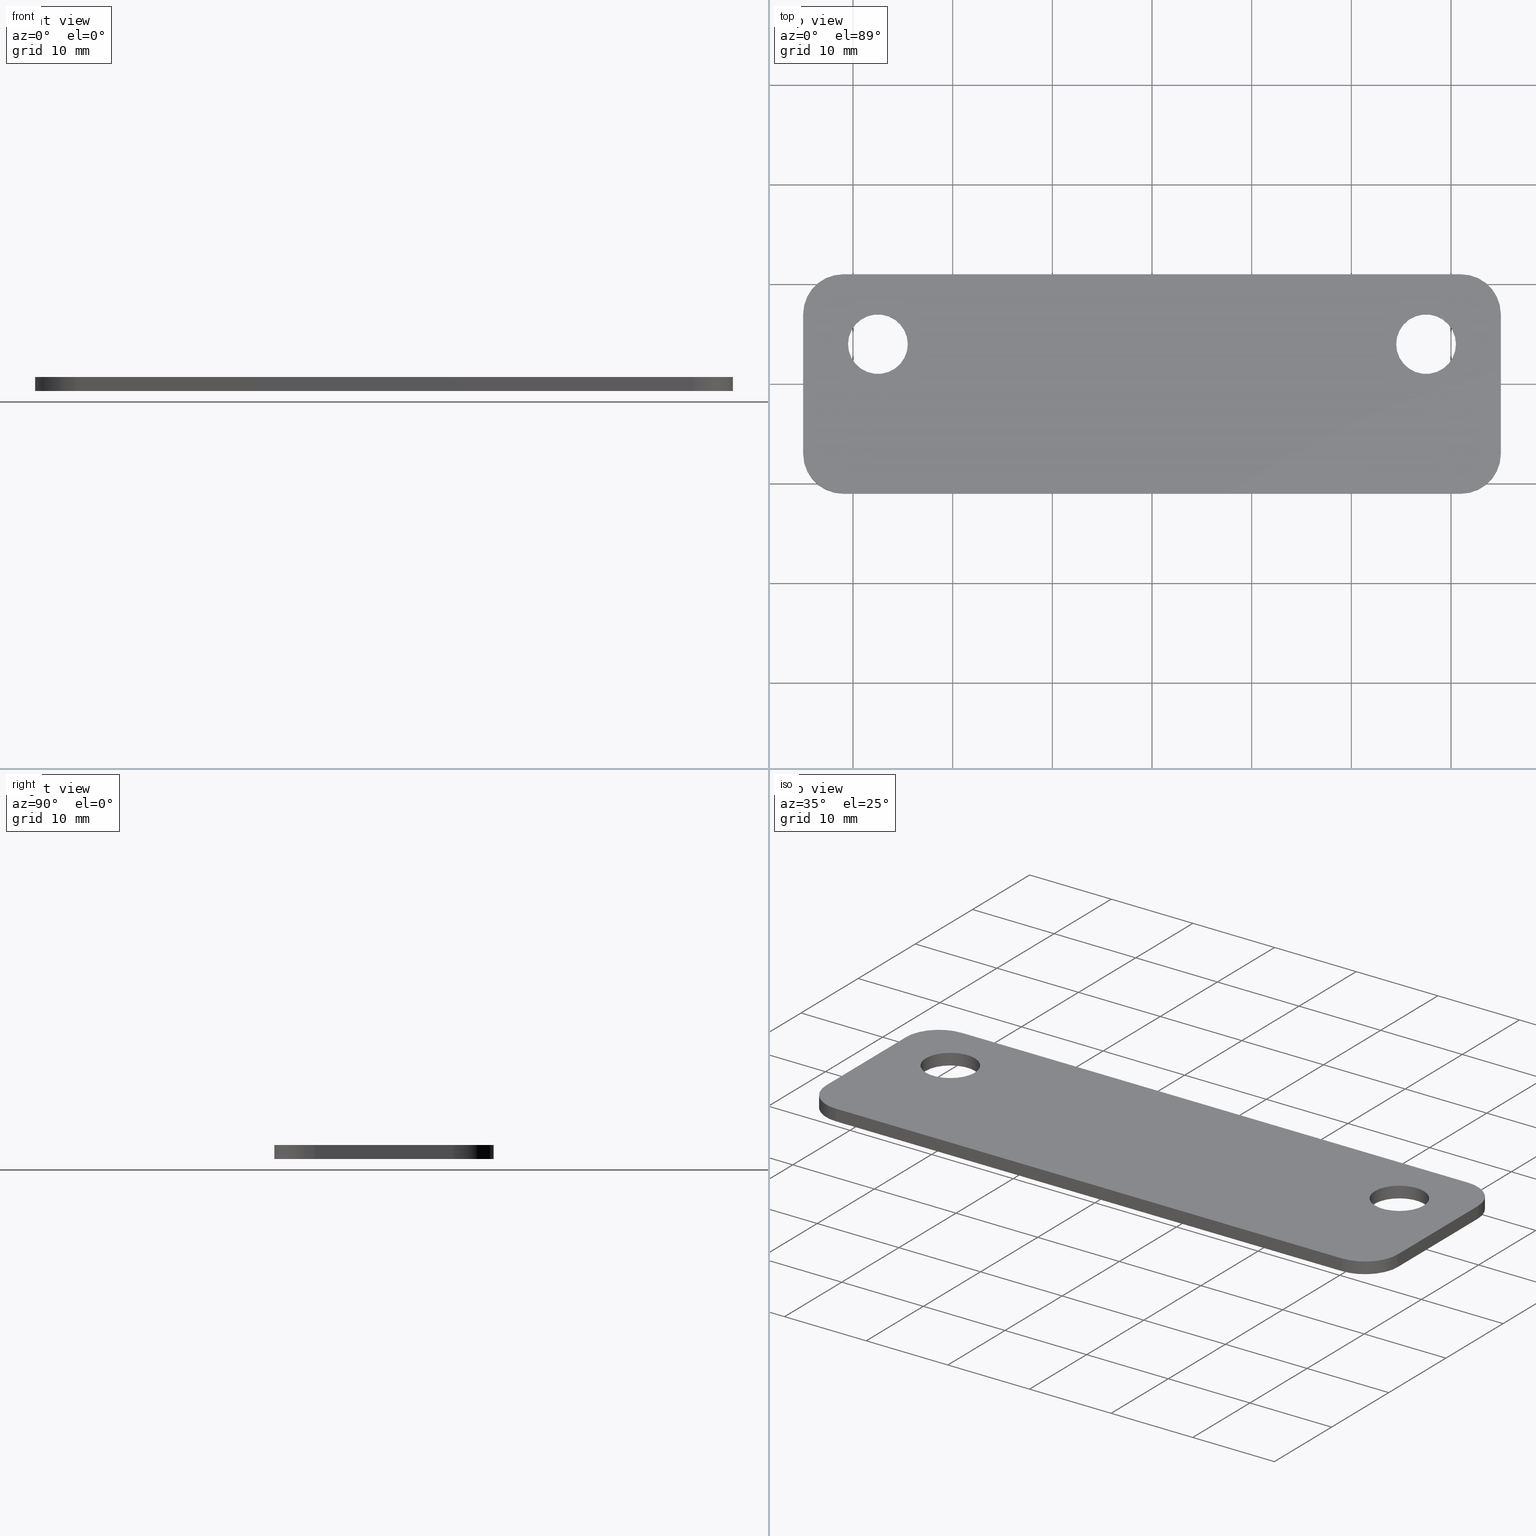
[diagram: canonical four-view strip — front | top / right | iso, engineering-drawing reading convention]
A machine part, canonical four-view strip (front | top / right | iso — engineering-drawing reading convention). The complete STEP part file that produces these views, byte-faithful:
ISO-10303-21;
HEADER;
/* Generated by software containing ST-Developer
 * from STEP Tools, Inc. (www.steptools.com) 
 */

FILE_DESCRIPTION(
/* description */ (''),
/* implementation_level */ '2;1');

FILE_NAME(
/* name */ '\\\\SYNOLOGYNAS\\web\\db2\\B-M55\\\X2\B3C4BA74\X0\\\DR_B-M
55.stp',
/* time_stamp */ '2023-11-09T10:27:21+09:00',
/* author */ ('user'),
/* organization */ (''),
/* preprocessor_version */ 'ST-DEVELOPER v15.6',
/* originating_system */ 'Autodesk Inventor 2015',
/* authorisation */ '');

FILE_SCHEMA (('AUTOMOTIVE_DESIGN { 1 0 10303 214 3 1 1 }'));
ENDSEC;

DATA;
#10=MECHANICAL_DESIGN_GEOMETRIC_PRESENTATION_REPRESENTATION('',(#13),#379);
#11=SHAPE_REPRESENTATION_RELATIONSHIP('SRR','None',#388,#12);
#12=ADVANCED_BREP_SHAPE_REPRESENTATION($,(#14),#378);
#13=STYLED_ITEM('',(#397),#14);
#14=MANIFOLD_SOLID_BREP('\X2\C194B9ACB4DC\X0\1',#223);
#15=PLANE('',#234);
#16=PLANE('',#238);
#17=PLANE('',#242);
#18=PLANE('',#246);
#19=PLANE('',#247);
#20=PLANE('',#248);
#21=LINE('',#331,#37);
#22=LINE('',#334,#38);
#23=LINE('',#337,#39);
#24=LINE('',#339,#40);
#25=LINE('',#340,#41);
#26=LINE('',#346,#42);
#27=LINE('',#349,#43);
#28=LINE('',#351,#44);
#29=LINE('',#352,#45);
#30=LINE('',#358,#46);
#31=LINE('',#361,#47);
#32=LINE('',#363,#48);
#33=LINE('',#364,#49);
#34=LINE('',#370,#50);
#35=LINE('',#372,#51);
#36=LINE('',#373,#52);
#37=VECTOR('',#267,1.4);
#38=VECTOR('',#270,1.4);
#39=VECTOR('',#273,14.);
#40=VECTOR('',#274,14.);
#41=VECTOR('',#275,1.4);
#42=VECTOR('',#282,1.4);
#43=VECTOR('',#285,62.);
#44=VECTOR('',#286,62.);
#45=VECTOR('',#287,1.4);
#46=VECTOR('',#294,1.4);
#47=VECTOR('',#297,14.);
#48=VECTOR('',#298,14.);
#49=VECTOR('',#299,1.4);
#50=VECTOR('',#306,1.4);
#51=VECTOR('',#309,62.);
#52=VECTOR('',#310,62.);
#53=FACE_BOUND('',#72,.T.);
#54=FACE_BOUND('',#74,.T.);
#55=FACE_BOUND('',#84,.T.);
#56=FACE_BOUND('',#85,.T.);
#57=FACE_BOUND('',#87,.T.);
#58=FACE_BOUND('',#88,.T.);
#59=FACE_OUTER_BOUND('',#71,.T.);
#60=FACE_OUTER_BOUND('',#73,.T.);
#61=FACE_OUTER_BOUND('',#75,.T.);
#62=FACE_OUTER_BOUND('',#76,.T.);
#63=FACE_OUTER_BOUND('',#77,.T.);
#64=FACE_OUTER_BOUND('',#78,.T.);
#65=FACE_OUTER_BOUND('',#79,.T.);
#66=FACE_OUTER_BOUND('',#80,.T.);
#67=FACE_OUTER_BOUND('',#81,.T.);
#68=FACE_OUTER_BOUND('',#82,.T.);
#69=FACE_OUTER_BOUND('',#83,.T.);
#70=FACE_OUTER_BOUND('',#86,.T.);
#71=EDGE_LOOP('',(#149));
#72=EDGE_LOOP('',(#150));
#73=EDGE_LOOP('',(#151));
#74=EDGE_LOOP('',(#152));
#75=EDGE_LOOP('',(#153,#154,#155,#156));
#76=EDGE_LOOP('',(#157,#158,#159,#160));
#77=EDGE_LOOP('',(#161,#162,#163,#164));
#78=EDGE_LOOP('',(#165,#166,#167,#168));
#79=EDGE_LOOP('',(#169,#170,#171,#172));
#80=EDGE_LOOP('',(#173,#174,#175,#176));
#81=EDGE_LOOP('',(#177,#178,#179,#180));
#82=EDGE_LOOP('',(#181,#182,#183,#184));
#83=EDGE_LOOP('',(#185,#186,#187,#188,#189,#190,#191,#192));
#84=EDGE_LOOP('',(#193));
#85=EDGE_LOOP('',(#194));
#86=EDGE_LOOP('',(#195,#196,#197,#198,#199,#200,#201,#202));
#87=EDGE_LOOP('',(#203));
#88=EDGE_LOOP('',(#204));
#89=CIRCLE('',#226,3.);
#90=CIRCLE('',#227,3.);
#91=CIRCLE('',#229,3.);
#92=CIRCLE('',#230,3.);
#93=CIRCLE('',#232,4.);
#94=CIRCLE('',#233,4.);
#95=CIRCLE('',#236,4.);
#96=CIRCLE('',#237,4.);
#97=CIRCLE('',#240,4.);
#98=CIRCLE('',#241,4.);
#99=CIRCLE('',#244,4.);
#100=CIRCLE('',#245,4.);
#101=VERTEX_POINT('',#317);
#102=VERTEX_POINT('',#319);
#103=VERTEX_POINT('',#322);
#104=VERTEX_POINT('',#324);
#105=VERTEX_POINT('',#327);
#106=VERTEX_POINT('',#328);
#107=VERTEX_POINT('',#330);
#108=VERTEX_POINT('',#332);
#109=VERTEX_POINT('',#336);
#110=VERTEX_POINT('',#338);
#111=VERTEX_POINT('',#342);
#112=VERTEX_POINT('',#344);
#113=VERTEX_POINT('',#348);
#114=VERTEX_POINT('',#350);
#115=VERTEX_POINT('',#354);
#116=VERTEX_POINT('',#356);
#117=VERTEX_POINT('',#360);
#118=VERTEX_POINT('',#362);
#119=VERTEX_POINT('',#366);
#120=VERTEX_POINT('',#368);
#121=EDGE_CURVE('',#101,#101,#89,.T.);
#122=EDGE_CURVE('',#102,#102,#90,.T.);
#123=EDGE_CURVE('',#103,#103,#91,.T.);
#124=EDGE_CURVE('',#104,#104,#92,.T.);
#125=EDGE_CURVE('',#105,#106,#93,.T.);
#126=EDGE_CURVE('',#105,#107,#21,.T.);
#127=EDGE_CURVE('',#108,#107,#94,.T.);
#128=EDGE_CURVE('',#106,#108,#22,.T.);
#129=EDGE_CURVE('',#106,#109,#23,.T.);
#130=EDGE_CURVE('',#110,#108,#24,.T.);
#131=EDGE_CURVE('',#109,#110,#25,.T.);
#132=EDGE_CURVE('',#109,#111,#95,.T.);
#133=EDGE_CURVE('',#112,#110,#96,.T.);
#134=EDGE_CURVE('',#111,#112,#26,.T.);
#135=EDGE_CURVE('',#111,#113,#27,.T.);
#136=EDGE_CURVE('',#114,#112,#28,.T.);
#137=EDGE_CURVE('',#113,#114,#29,.T.);
#138=EDGE_CURVE('',#113,#115,#97,.T.);
#139=EDGE_CURVE('',#116,#114,#98,.T.);
#140=EDGE_CURVE('',#115,#116,#30,.T.);
#141=EDGE_CURVE('',#115,#117,#31,.T.);
#142=EDGE_CURVE('',#118,#116,#32,.T.);
#143=EDGE_CURVE('',#117,#118,#33,.T.);
#144=EDGE_CURVE('',#117,#119,#99,.T.);
#145=EDGE_CURVE('',#120,#118,#100,.T.);
#146=EDGE_CURVE('',#119,#120,#34,.T.);
#147=EDGE_CURVE('',#119,#105,#35,.T.);
#148=EDGE_CURVE('',#107,#120,#36,.T.);
#149=ORIENTED_EDGE('',*,*,#121,.F.);
#150=ORIENTED_EDGE('',*,*,#122,.F.);
#151=ORIENTED_EDGE('',*,*,#123,.F.);
#152=ORIENTED_EDGE('',*,*,#124,.F.);
#153=ORIENTED_EDGE('',*,*,#125,.F.);
#154=ORIENTED_EDGE('',*,*,#126,.T.);
#155=ORIENTED_EDGE('',*,*,#127,.F.);
#156=ORIENTED_EDGE('',*,*,#128,.F.);
#157=ORIENTED_EDGE('',*,*,#129,.F.);
#158=ORIENTED_EDGE('',*,*,#128,.T.);
#159=ORIENTED_EDGE('',*,*,#130,.F.);
#160=ORIENTED_EDGE('',*,*,#131,.F.);
#161=ORIENTED_EDGE('',*,*,#132,.F.);
#162=ORIENTED_EDGE('',*,*,#131,.T.);
#163=ORIENTED_EDGE('',*,*,#133,.F.);
#164=ORIENTED_EDGE('',*,*,#134,.F.);
#165=ORIENTED_EDGE('',*,*,#135,.F.);
#166=ORIENTED_EDGE('',*,*,#134,.T.);
#167=ORIENTED_EDGE('',*,*,#136,.F.);
#168=ORIENTED_EDGE('',*,*,#137,.F.);
#169=ORIENTED_EDGE('',*,*,#138,.F.);
#170=ORIENTED_EDGE('',*,*,#137,.T.);
#171=ORIENTED_EDGE('',*,*,#139,.F.);
#172=ORIENTED_EDGE('',*,*,#140,.F.);
#173=ORIENTED_EDGE('',*,*,#141,.F.);
#174=ORIENTED_EDGE('',*,*,#140,.T.);
#175=ORIENTED_EDGE('',*,*,#142,.F.);
#176=ORIENTED_EDGE('',*,*,#143,.F.);
#177=ORIENTED_EDGE('',*,*,#144,.F.);
#178=ORIENTED_EDGE('',*,*,#143,.T.);
#179=ORIENTED_EDGE('',*,*,#145,.F.);
#180=ORIENTED_EDGE('',*,*,#146,.F.);
#181=ORIENTED_EDGE('',*,*,#147,.F.);
#182=ORIENTED_EDGE('',*,*,#146,.T.);
#183=ORIENTED_EDGE('',*,*,#148,.F.);
#184=ORIENTED_EDGE('',*,*,#126,.F.);
#185=ORIENTED_EDGE('',*,*,#147,.T.);
#186=ORIENTED_EDGE('',*,*,#125,.T.);
#187=ORIENTED_EDGE('',*,*,#129,.T.);
#188=ORIENTED_EDGE('',*,*,#132,.T.);
#189=ORIENTED_EDGE('',*,*,#135,.T.);
#190=ORIENTED_EDGE('',*,*,#138,.T.);
#191=ORIENTED_EDGE('',*,*,#141,.T.);
#192=ORIENTED_EDGE('',*,*,#144,.T.);
#193=ORIENTED_EDGE('',*,*,#122,.T.);
#194=ORIENTED_EDGE('',*,*,#124,.T.);
#195=ORIENTED_EDGE('',*,*,#148,.T.);
#196=ORIENTED_EDGE('',*,*,#145,.T.);
#197=ORIENTED_EDGE('',*,*,#142,.T.);
#198=ORIENTED_EDGE('',*,*,#139,.T.);
#199=ORIENTED_EDGE('',*,*,#136,.T.);
#200=ORIENTED_EDGE('',*,*,#133,.T.);
#201=ORIENTED_EDGE('',*,*,#130,.T.);
#202=ORIENTED_EDGE('',*,*,#127,.T.);
#203=ORIENTED_EDGE('',*,*,#121,.T.);
#204=ORIENTED_EDGE('',*,*,#123,.T.);
#205=CYLINDRICAL_SURFACE('',#225,3.);
#206=CYLINDRICAL_SURFACE('',#228,3.);
#207=CYLINDRICAL_SURFACE('',#231,4.);
#208=CYLINDRICAL_SURFACE('',#235,4.);
#209=CYLINDRICAL_SURFACE('',#239,4.);
#210=CYLINDRICAL_SURFACE('',#243,4.);
#211=ADVANCED_FACE('',(#59,#53),#205,.F.);
#212=ADVANCED_FACE('',(#60,#54),#206,.F.);
#213=ADVANCED_FACE('',(#61),#207,.T.);
#214=ADVANCED_FACE('',(#62),#15,.T.);
#215=ADVANCED_FACE('',(#63),#208,.T.);
#216=ADVANCED_FACE('',(#64),#16,.T.);
#217=ADVANCED_FACE('',(#65),#209,.T.);
#218=ADVANCED_FACE('',(#66),#17,.T.);
#219=ADVANCED_FACE('',(#67),#210,.T.);
#220=ADVANCED_FACE('',(#68),#18,.T.);
#221=ADVANCED_FACE('',(#69,#55,#56),#19,.F.);
#222=ADVANCED_FACE('',(#70,#57,#58),#20,.T.);
#223=CLOSED_SHELL('',(#211,#212,#213,#214,#215,#216,#217,#218,#219,#220,
#221,#222));
#224=AXIS2_PLACEMENT_3D('placement',#315,#249,#250);
#225=AXIS2_PLACEMENT_3D('',#316,#251,#252);
#226=AXIS2_PLACEMENT_3D('',#318,#253,#254);
#227=AXIS2_PLACEMENT_3D('',#320,#255,#256);
#228=AXIS2_PLACEMENT_3D('',#321,#257,#258);
#229=AXIS2_PLACEMENT_3D('',#323,#259,#260);
#230=AXIS2_PLACEMENT_3D('',#325,#261,#262);
#231=AXIS2_PLACEMENT_3D('',#326,#263,#264);
#232=AXIS2_PLACEMENT_3D('',#329,#265,#266);
#233=AXIS2_PLACEMENT_3D('',#333,#268,#269);
#234=AXIS2_PLACEMENT_3D('',#335,#271,#272);
#235=AXIS2_PLACEMENT_3D('',#341,#276,#277);
#236=AXIS2_PLACEMENT_3D('',#343,#278,#279);
#237=AXIS2_PLACEMENT_3D('',#345,#280,#281);
#238=AXIS2_PLACEMENT_3D('',#347,#283,#284);
#239=AXIS2_PLACEMENT_3D('',#353,#288,#289);
#240=AXIS2_PLACEMENT_3D('',#355,#290,#291);
#241=AXIS2_PLACEMENT_3D('',#357,#292,#293);
#242=AXIS2_PLACEMENT_3D('',#359,#295,#296);
#243=AXIS2_PLACEMENT_3D('',#365,#300,#301);
#244=AXIS2_PLACEMENT_3D('',#367,#302,#303);
#245=AXIS2_PLACEMENT_3D('',#369,#304,#305);
#246=AXIS2_PLACEMENT_3D('',#371,#307,#308);
#247=AXIS2_PLACEMENT_3D('',#374,#311,#312);
#248=AXIS2_PLACEMENT_3D('',#375,#313,#314);
#249=DIRECTION('axis',(0.,0.,1.));
#250=DIRECTION('refdir',(1.,0.,0.));
#251=DIRECTION('center_axis',(0.,0.,1.));
#252=DIRECTION('ref_axis',(-1.,0.,0.));
#253=DIRECTION('center_axis',(0.,0.,-1.));
#254=DIRECTION('ref_axis',(-1.,0.,0.));
#255=DIRECTION('center_axis',(0.,0.,1.));
#256=DIRECTION('ref_axis',(-1.,0.,0.));
#257=DIRECTION('center_axis',(0.,0.,1.));
#258=DIRECTION('ref_axis',(-1.,0.,0.));
#259=DIRECTION('center_axis',(0.,0.,-1.));
#260=DIRECTION('ref_axis',(-1.,0.,0.));
#261=DIRECTION('center_axis',(0.,0.,1.));
#262=DIRECTION('ref_axis',(-1.,0.,0.));
#263=DIRECTION('center_axis',(0.,0.,1.));
#264=DIRECTION('ref_axis',(-1.,-2.77555756156289E-16,0.));
#265=DIRECTION('center_axis',(0.,0.,-1.));
#266=DIRECTION('ref_axis',(-1.,-2.77555756156289E-16,0.));
#267=DIRECTION('',(0.,0.,1.));
#268=DIRECTION('center_axis',(0.,0.,1.));
#269=DIRECTION('ref_axis',(-1.,-2.77555756156289E-16,0.));
#270=DIRECTION('',(0.,0.,1.));
#271=DIRECTION('center_axis',(1.,-3.1720657846433E-16,0.));
#272=DIRECTION('ref_axis',(0.,1.,0.));
#273=DIRECTION('',(-3.1720657846433E-16,-1.,0.));
#274=DIRECTION('',(3.1720657846433E-16,1.,0.));
#275=DIRECTION('',(0.,0.,1.));
#276=DIRECTION('center_axis',(0.,0.,1.));
#277=DIRECTION('ref_axis',(0.,1.,0.));
#278=DIRECTION('center_axis',(0.,0.,-1.));
#279=DIRECTION('ref_axis',(0.,1.,0.));
#280=DIRECTION('center_axis',(0.,0.,1.));
#281=DIRECTION('ref_axis',(0.,1.,0.));
#282=DIRECTION('',(0.,0.,1.));
#283=DIRECTION('center_axis',(0.,-1.,0.));
#284=DIRECTION('ref_axis',(1.,0.,0.));
#285=DIRECTION('',(-1.,0.,0.));
#286=DIRECTION('',(1.,0.,0.));
#287=DIRECTION('',(0.,0.,1.));
#288=DIRECTION('center_axis',(0.,0.,1.));
#289=DIRECTION('ref_axis',(1.,2.7755575615629E-16,0.));
#290=DIRECTION('center_axis',(0.,0.,-1.));
#291=DIRECTION('ref_axis',(1.,2.7755575615629E-16,0.));
#292=DIRECTION('center_axis',(0.,0.,1.));
#293=DIRECTION('ref_axis',(1.,2.7755575615629E-16,0.));
#294=DIRECTION('',(0.,0.,1.));
#295=DIRECTION('center_axis',(-1.,-6.34413156928661E-16,0.));
#296=DIRECTION('ref_axis',(7.105427357601E-16,-1.,0.));
#297=DIRECTION('',(-6.34413156928661E-16,1.,0.));
#298=DIRECTION('',(6.34413156928661E-16,-1.,0.));
#299=DIRECTION('',(0.,0.,1.));
#300=DIRECTION('center_axis',(0.,0.,1.));
#301=DIRECTION('ref_axis',(0.,-1.,0.));
#302=DIRECTION('center_axis',(0.,0.,-1.));
#303=DIRECTION('ref_axis',(0.,-1.,0.));
#304=DIRECTION('center_axis',(0.,0.,1.));
#305=DIRECTION('ref_axis',(0.,-1.,0.));
#306=DIRECTION('',(0.,0.,1.));
#307=DIRECTION('center_axis',(-1.43254583822601E-16,1.,0.));
#308=DIRECTION('ref_axis',(-1.,-1.77635683940025E-16,0.));
#309=DIRECTION('',(1.,1.43254583822601E-16,0.));
#310=DIRECTION('',(-1.,-1.43254583822601E-16,0.));
#311=DIRECTION('center_axis',(0.,0.,1.));
#312=DIRECTION('ref_axis',(1.,0.,0.));
#313=DIRECTION('center_axis',(0.,0.,1.));
#314=DIRECTION('ref_axis',(1.,0.,0.));
#315=CARTESIAN_POINT('',(0.,0.,0.));
#316=CARTESIAN_POINT('Origin',(27.5,4.,0.));
#317=CARTESIAN_POINT('',(30.5,4.,1.4));
#318=CARTESIAN_POINT('Origin',(27.5,4.,1.4));
#319=CARTESIAN_POINT('',(30.5,4.,0.));
#320=CARTESIAN_POINT('Origin',(27.5,4.,0.));
#321=CARTESIAN_POINT('Origin',(-27.5,4.,0.));
#322=CARTESIAN_POINT('',(-24.5,4.,1.4));
#323=CARTESIAN_POINT('Origin',(-27.5,4.,1.4));
#324=CARTESIAN_POINT('',(-24.5,4.,0.));
#325=CARTESIAN_POINT('Origin',(-27.5,4.,0.));
#326=CARTESIAN_POINT('Origin',(31.,7.,0.));
#327=CARTESIAN_POINT('',(31.,11.,0.));
#328=CARTESIAN_POINT('',(35.,7.00000000000001,0.));
#329=CARTESIAN_POINT('Origin',(31.,7.,0.));
#330=CARTESIAN_POINT('',(31.,11.,1.4));
#331=CARTESIAN_POINT('',(31.,11.,0.));
#332=CARTESIAN_POINT('',(35.,7.00000000000001,1.4));
#333=CARTESIAN_POINT('Origin',(31.,7.,1.4));
#334=CARTESIAN_POINT('',(35.,7.00000000000001,0.));
#335=CARTESIAN_POINT('Origin',(35.,-7.,0.));
#336=CARTESIAN_POINT('',(35.,-7.,0.));
#337=CARTESIAN_POINT('',(35.,7.,0.));
#338=CARTESIAN_POINT('',(35.,-7.,1.4));
#339=CARTESIAN_POINT('',(35.,7.,1.4));
#340=CARTESIAN_POINT('',(35.,-7.,0.));
#341=CARTESIAN_POINT('Origin',(31.,-7.,0.));
#342=CARTESIAN_POINT('',(31.,-11.,0.));
#343=CARTESIAN_POINT('Origin',(31.,-7.,0.));
#344=CARTESIAN_POINT('',(31.,-11.,1.4));
#345=CARTESIAN_POINT('Origin',(31.,-7.,1.4));
#346=CARTESIAN_POINT('',(31.,-11.,0.));
#347=CARTESIAN_POINT('Origin',(-31.,-11.,0.));
#348=CARTESIAN_POINT('',(-31.,-11.,0.));
#349=CARTESIAN_POINT('',(31.,-11.,0.));
#350=CARTESIAN_POINT('',(-31.,-11.,1.4));
#351=CARTESIAN_POINT('',(31.,-11.,1.4));
#352=CARTESIAN_POINT('',(-31.,-11.,0.));
#353=CARTESIAN_POINT('Origin',(-31.,-7.,0.));
#354=CARTESIAN_POINT('',(-35.,-7.,0.));
#355=CARTESIAN_POINT('Origin',(-31.,-7.,0.));
#356=CARTESIAN_POINT('',(-35.,-7.,1.4));
#357=CARTESIAN_POINT('Origin',(-31.,-7.,1.4));
#358=CARTESIAN_POINT('',(-35.,-7.,0.));
#359=CARTESIAN_POINT('Origin',(-35.,7.,0.));
#360=CARTESIAN_POINT('',(-35.,7.,0.));
#361=CARTESIAN_POINT('',(-35.,-7.,0.));
#362=CARTESIAN_POINT('',(-35.,7.,1.4));
#363=CARTESIAN_POINT('',(-35.,-7.,1.4));
#364=CARTESIAN_POINT('',(-35.,7.,0.));
#365=CARTESIAN_POINT('Origin',(-31.,7.,0.));
#366=CARTESIAN_POINT('',(-31.,11.,0.));
#367=CARTESIAN_POINT('Origin',(-31.,7.,0.));
#368=CARTESIAN_POINT('',(-31.,11.,1.4));
#369=CARTESIAN_POINT('Origin',(-31.,7.,1.4));
#370=CARTESIAN_POINT('',(-31.,11.,0.));
#371=CARTESIAN_POINT('Origin',(31.,11.,0.));
#372=CARTESIAN_POINT('',(-31.,11.,0.));
#373=CARTESIAN_POINT('',(-31.,11.,1.4));
#374=CARTESIAN_POINT('Origin',(2.53431726683947E-15,2.04694856167803E-15,
0.));
#375=CARTESIAN_POINT('Origin',(2.53431726683947E-15,2.04694856167803E-15,
1.4));
#376=UNCERTAINTY_MEASURE_WITH_UNIT(LENGTH_MEASURE(0.01),#380,
'DISTANCE_ACCURACY_VALUE',
'Maximum model space distance between geometric entities at asserted c
onnectivities');
#377=UNCERTAINTY_MEASURE_WITH_UNIT(LENGTH_MEASURE(1.E-6),#380,
'DISTANCE_ACCURACY_VALUE',
'Maximum model space distance between geometric entities at asserted c
onnectivities');
#378=(
GEOMETRIC_REPRESENTATION_CONTEXT(3)
GLOBAL_UNCERTAINTY_ASSIGNED_CONTEXT((#376))
GLOBAL_UNIT_ASSIGNED_CONTEXT((#380,#383,#381))
REPRESENTATION_CONTEXT('','3D')
);
#379=(
GEOMETRIC_REPRESENTATION_CONTEXT(3)
GLOBAL_UNCERTAINTY_ASSIGNED_CONTEXT((#377))
GLOBAL_UNIT_ASSIGNED_CONTEXT((#380,#383,#381))
REPRESENTATION_CONTEXT('','3D')
);
#380=(
LENGTH_UNIT()
NAMED_UNIT(*)
SI_UNIT(.MILLI.,.METRE.)
);
#381=(
NAMED_UNIT(*)
SI_UNIT($,.STERADIAN.)
SOLID_ANGLE_UNIT()
);
#382=DIMENSIONAL_EXPONENTS(0.,0.,0.,0.,0.,0.,0.);
#383=(
CONVERSION_BASED_UNIT('degree',#385)
NAMED_UNIT(#382)
PLANE_ANGLE_UNIT()
);
#384=(
NAMED_UNIT(*)
PLANE_ANGLE_UNIT()
SI_UNIT($,.RADIAN.)
);
#385=PLANE_ANGLE_MEASURE_WITH_UNIT(PLANE_ANGLE_MEASURE(0.01745329252),#384);
#386=SHAPE_DEFINITION_REPRESENTATION(#387,#388);
#387=PRODUCT_DEFINITION_SHAPE('',$,#390);
#388=SHAPE_REPRESENTATION('',(#224),#378);
#389=PRODUCT_DEFINITION_CONTEXT('part definition',#394,'design');
#390=PRODUCT_DEFINITION('DR_B-M55','DR_B-M55',#391,#389);
#391=PRODUCT_DEFINITION_FORMATION('',$,#396);
#392=PRODUCT_RELATED_PRODUCT_CATEGORY('DR_B-M55','DR_B-M55',(#396));
#393=APPLICATION_PROTOCOL_DEFINITION('international standard',
'automotive_design',2009,#394);
#394=APPLICATION_CONTEXT(
'Core Data for Automotive Mechanical Design Process');
#395=PRODUCT_CONTEXT('part definition',#394,'mechanical');
#396=PRODUCT('DR_B-M55','DR_B-M55',$,(#395));
#397=PRESENTATION_STYLE_ASSIGNMENT((#398));
#398=SURFACE_STYLE_USAGE(.BOTH.,#399);
#399=SURFACE_SIDE_STYLE($,(#400));
#400=SURFACE_STYLE_FILL_AREA(#401);
#401=FILL_AREA_STYLE($,(#402));
#402=FILL_AREA_STYLE_COLOUR($,#403);
#403=COLOUR_RGB('',1.,1.,1.);
ENDSEC;
END-ISO-10303-21;
